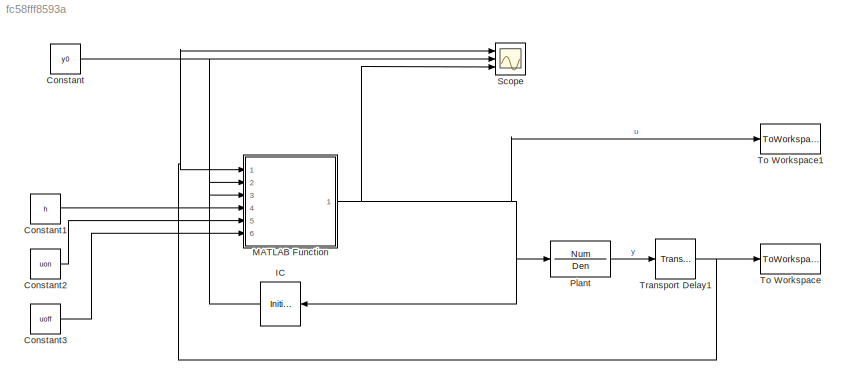
MODEL slx_fc58fff8593a
KIND model
CONFIG AbsTol = auto
CONFIG EnableMultiTasking = off
CONFIG FixedStep = dt
CONFIG MaxStep = 1e-1
CONFIG MinStep = 1e-2
CONFIG RelTol = 1e-3
CONFIG SampleTimeConstraint = Unconstrained
CONFIG Solver = FixedStepAuto
CONFIG SolverName = FixedStepAuto
CONFIG StartTime = t_start
CONFIG StopTime = t_end
BLOCK [Constant] Constant
  Value = y0
BLOCK [Constant] Constant1
  Value = h
BLOCK [Constant] Constant2
  Value = uon
BLOCK [Constant] Constant3
  Value = uoff
BLOCK [InitialCondition] IC
  Value = d1
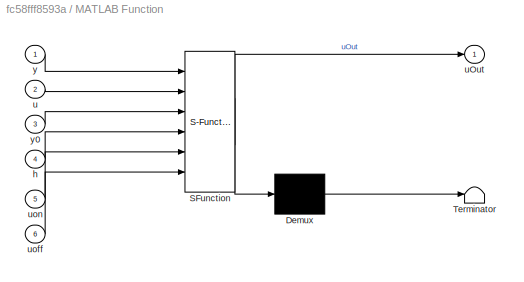
BLOCK [SubSystem] MATLAB Function
  ErrorFcn = Stateflow.Translate.translate
  PermitHierarchicalResolution = ExplicitOnly
  Ports = [6, 1]
  RequestExecContextInheritance = off
  SFBlockType = MATLAB Function
  TreatAsAtomicUnit = on
  Variant = off
BLOCK [Demux] MATLAB Function/ Demux 
  Outputs = 1
  Ports = [1, 1]
BLOCK [S-Function] MATLAB Function/ SFunction 
  EnableBusSupport = on
  FunctionName = sf_sfun
  PortCounts = [6 2]
  Ports = [6, 2]
  SFcnIsStateOwnerBlock = off
  SFunctionDeploymentMode = off
  Tag = Stateflow S-Function Relay_Auto_Tuning 2
BLOCK [Terminator] MATLAB Function/ Terminator 
BLOCK [Inport] MATLAB Function/h
  IconDisplay = Port number
  Port = 4
BLOCK [Inport] MATLAB Function/u
  IconDisplay = Port number
  Port = 2
BLOCK [Outport] MATLAB Function/uOut
  IconDisplay = Port number
BLOCK [Inport] MATLAB Function/uoff
  IconDisplay = Port number
  Port = 6
BLOCK [Inport] MATLAB Function/uon
  IconDisplay = Port number
  Port = 5
BLOCK [Inport] MATLAB Function/y
  IconDisplay = Port number
BLOCK [Inport] MATLAB Function/y0
  IconDisplay = Port number
  Port = 3
BLOCK [TransferFcn] Plant
  Denominator = Den
  Numerator = Num
BLOCK [Scope] Scope
  NumInputPorts = 3
  Ports = [3]
  ScopeSpecificationString = Simulink.scopes.TimeScopeBlockCfg('CurrentConfiguration', extmgr.ConfigurationSet(extmgr.Configuration('Core','General UI',true),extmgr.Configuration('Core','Source UI',true),extmgr.Configuration('Sources','WiredSimulink',true),extmgr.Configuration('Visuals','Time Domain',true,'SerializedDisplays',{struct('MinYLimReal','-0.51496','MaxYLimReal','0.56918','YLabelReal','','MinYLimMag','0.00000','MaxY...<+1429ch>
BLOCK [ToWorkspace] To Workspace
  FixptAsFi = on
  MaxDataPoints = inf
  Ports = [1]
  SampleTime = -1
  Save2DSignal = 3-D array (concatenate along third dimension)
  SaveFormat = Timeseries
  VariableName = y
BLOCK [ToWorkspace] To Workspace1
  FixptAsFi = on
  MaxDataPoints = inf
  Ports = [1]
  SampleTime = -1
  Save2DSignal = 3-D array (concatenate along third dimension)
  SaveFormat = Timeseries
  VariableName = u
BLOCK [TransportDelay] Transport Delay1
  BufferSize = 4096
  DelayTime = L
  InitialOutput = y0
  PadeOrder = 4
  Ports = [1, 1]
  TransDelayFeedthrough = on
LINE Constant1:1 -> MATLAB Function:4
LINE Constant2:1 -> MATLAB Function:5
LINE Constant3:1 -> MATLAB Function:6
NET Constant:1 -> MATLAB Function:3, Scope:2
LINE IC:1 -> MATLAB Function:2
NET MATLAB Function:1 -> IC:1, Plant:1, Scope:3, To Workspace1:1
LINE Plant:1 -> Transport Delay1:1
NET Transport Delay1:1 -> MATLAB Function:1, Scope:1, To Workspace:1
note: NET lines group one-source signal fan-out (src -> all destinations, sorted); 1:1 wires keep LINE
CHART MATLAB Function states=1 transitions=1
  STATE_LABEL 'eML_blk_kernel()'
  STATE_LABEL 'SCRIPT:\nfunction uOut = fcn(y,u,y0,h,uon,uoff)\nif y < y0-h\n    uOut = uon;\nelseif (y <y0+h)&&(u == uon)\n    uOut = u;\nelseif (y > y0-h) && (u==(uoff))\n    uOut = u;\nelse\n    uOut = uoff;\nend\n\n'
